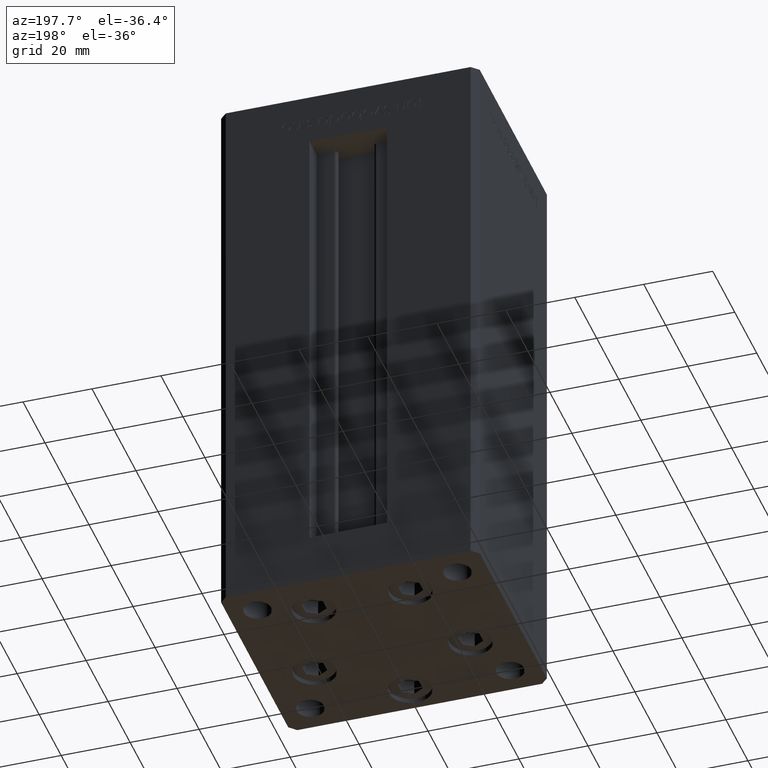
[diagram: clean part render]
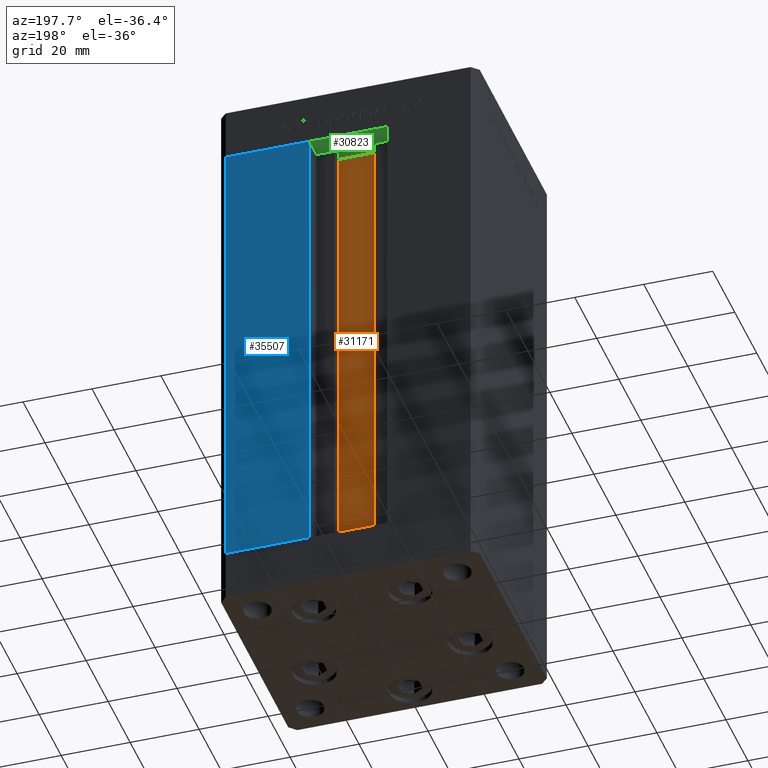
[diagram: same view with three faces highlighted in distinct colors, each labeled with its STEP entity id]
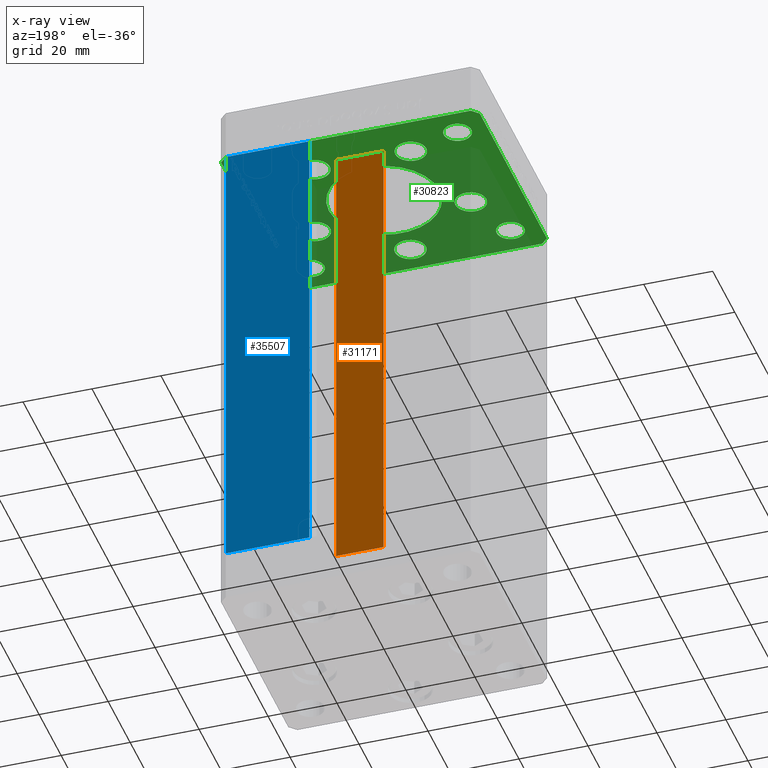
[diagram: x-ray of the same camera — body ghosted, the three highlighted faces saturated]
A machine part, auxiliary view with three faces highlighted in distinct colors.
The next image is the same camera in x-ray (body ghosted, the three faces saturated) — at least one of them is partly hidden behind the body in this view.
Their STEP definitions:

[orange] entity #31171 — the highlighted planar face has unit normal (0, -1, 0).
#5036 = FACE_OUTER_BOUND ( 'NONE', #39248, .T. ) ;
#7399 = VERTEX_POINT ( 'NONE', #44508 ) ;
#10540 = VECTOR ( 'NONE', #51314, 1000.000000000000000 ) ;
#10552 = LINE ( 'NONE', #26660, #30003 ) ;
#11081 = VERTEX_POINT ( 'NONE', #27765 ) ;
#11574 = EDGE_CURVE ( 'NONE', #38938, #7399, #39173, .T. ) ;
#12938 = CARTESIAN_POINT ( 'NONE',  ( 6.876153656360466826, 21.99999999999986855, 0.000000000000000000 ) ) ;
#13331 = VECTOR ( 'NONE', #29204, 1000.000000000000000 ) ;
#13368 = ORIENTED_EDGE ( 'NONE', *, *, #25436, .F. ) ;
#17981 = LINE ( 'NONE', #26424, #46942 ) ;
#23220 = DIRECTION ( 'NONE',  ( -1.000000000000000000, 0.000000000000000000, 0.000000000000000000 ) ) ;
#24322 = DIRECTION ( 'NONE',  ( 0.000000000000000000, -1.000000000000000000, -0.000000000000000000 ) ) ;
#25436 = EDGE_CURVE ( 'NONE', #11081, #7399, #10552, .T. ) ;
#26424 = CARTESIAN_POINT ( 'NONE',  ( 6.876153656360466826, 21.99999999999986855, 0.000000000000000000 ) ) ;
#26660 = CARTESIAN_POINT ( 'NONE',  ( 0.000000000000000000, 21.99999999999986855, 136.0000000000000000 ) ) ;
#26761 = CARTESIAN_POINT ( 'NONE',  ( 6.876153656360466826, 21.99999999999986855, 0.000000000000000000 ) ) ;
#27765 = CARTESIAN_POINT ( 'NONE',  ( 6.876153656360466826, 21.99999999999986855, 136.0000000000000000 ) ) ;
#28320 = VERTEX_POINT ( 'NONE', #26761 ) ;
#29204 = DIRECTION ( 'NONE',  ( -0.000000000000000000, -0.000000000000000000, 1.000000000000000000 ) ) ;
#29875 = DIRECTION ( 'NONE',  ( 1.000000000000000000, -0.000000000000000000, -0.000000000000000000 ) ) ;
#30003 = VECTOR ( 'NONE', #23220, 1000.000000000000000 ) ;
#30149 = ORIENTED_EDGE ( 'NONE', *, *, #36680, .F. ) ;
#30495 = CARTESIAN_POINT ( 'NONE',  ( -6.876153656360466826, 21.99999999999986855, 0.000000000000000000 ) ) ;
#31171 = ADVANCED_FACE ( 'NONE', ( #5036 ), #40911, .F. ) ;
#31974 = DIRECTION ( 'NONE',  ( 0.000000000000000000, 0.000000000000000000, -1.000000000000000000 ) ) ;
#33410 = LINE ( 'NONE', #33674, #13331 ) ;
#33674 = CARTESIAN_POINT ( 'NONE',  ( 6.876153656360466826, 21.99999999999986855, 0.000000000000000000 ) ) ;
#33834 = EDGE_CURVE ( 'NONE', #28320, #11081, #33410, .T. ) ;
#36680 = EDGE_CURVE ( 'NONE', #38938, #28320, #17981, .T. ) ;
#38938 = VERTEX_POINT ( 'NONE', #47896 ) ;
#39173 = LINE ( 'NONE', #30495, #10540 ) ;
#39248 = EDGE_LOOP ( 'NONE', ( #49405, #30149, #39843, #13368 ) ) ;
#39843 = ORIENTED_EDGE ( 'NONE', *, *, #11574, .T. ) ;
#40911 = PLANE ( 'NONE',  #42725 ) ;
#42725 = AXIS2_PLACEMENT_3D ( 'NONE', #12938, #24322, #31974 ) ;
#44508 = CARTESIAN_POINT ( 'NONE',  ( -6.876153656360466826, 21.99999999999986855, 136.0000000000000000 ) ) ;
#46942 = VECTOR ( 'NONE', #29875, 1000.000000000000000 ) ;
#47896 = CARTESIAN_POINT ( 'NONE',  ( -6.876153656360466826, 21.99999999999986855, 0.000000000000000000 ) ) ;
#49405 = ORIENTED_EDGE ( 'NONE', *, *, #33834, .F. ) ;
#51314 = DIRECTION ( 'NONE',  ( -0.000000000000000000, -0.000000000000000000, 1.000000000000000000 ) ) ;

[blue] entity #35507 — the highlighted planar face has unit normal (0, -1, 0).
#254 = EDGE_CURVE ( 'NONE', #8509, #34394, #17648, .T. ) ;
#278 = VECTOR ( 'NONE', #45338, 1000.000000000000000 ) ;
#1645 = VERTEX_POINT ( 'NONE', #47778 ) ;
#2880 = EDGE_CURVE ( 'NONE', #34394, #18643, #46605, .T. ) ;
#5257 = CARTESIAN_POINT ( 'NONE',  ( -11.25000000000000178, 32.49999999999999289, 0.000000000000000000 ) ) ;
#6258 = DIRECTION ( 'NONE',  ( -0.000000000000000000, -0.000000000000000000, 1.000000000000000000 ) ) ;
#8509 = VERTEX_POINT ( 'NONE', #45609 ) ;
#9474 = EDGE_CURVE ( 'NONE', #1645, #8509, #23139, .T. ) ;
#13561 = ORIENTED_EDGE ( 'NONE', *, *, #20313, .T. ) ;
#14161 = ORIENTED_EDGE ( 'NONE', *, *, #9474, .T. ) ;
#15222 = DIRECTION ( 'NONE',  ( 1.000000000000000000, 0.000000000000000000, 0.000000000000000000 ) ) ;
#17648 = LINE ( 'NONE', #5257, #278 ) ;
#17971 = CARTESIAN_POINT ( 'NONE',  ( 11.25000000000000178, 32.49999999999999289, 0.000000000000000000 ) ) ;
#18643 = VERTEX_POINT ( 'NONE', #40795 ) ;
#20313 = EDGE_CURVE ( 'NONE', #18643, #1645, #43174, .T. ) ;
#21452 = VECTOR ( 'NONE', #42380, 1000.000000000000000 ) ;
#21707 = AXIS2_PLACEMENT_3D ( 'NONE', #34007, #37458, #41919 ) ;
#22262 = VECTOR ( 'NONE', #15222, 1000.000000000000000 ) ;
#23139 = LINE ( 'NONE', #39220, #21452 ) ;
#25638 = VECTOR ( 'NONE', #6258, 1000.000000000000000 ) ;
#26836 = ORIENTED_EDGE ( 'NONE', *, *, #2880, .T. ) ;
#29692 = ORIENTED_EDGE ( 'NONE', *, *, #254, .T. ) ;
#32971 = FACE_OUTER_BOUND ( 'NONE', #48219, .T. ) ;
#33498 = PLANE ( 'NONE',  #21707 ) ;
#34007 = CARTESIAN_POINT ( 'NONE',  ( -11.25000000000000178, 32.49999999999999289, 136.0000000000000000 ) ) ;
#34394 = VERTEX_POINT ( 'NONE', #17971 ) ;
#35507 = ADVANCED_FACE ( 'NONE', ( #32971 ), #33498, .F. ) ;
#37458 = DIRECTION ( 'NONE',  ( 0.000000000000000000, -1.000000000000000000, 0.000000000000000000 ) ) ;
#39220 = CARTESIAN_POINT ( 'NONE',  ( 35.50000000000000000, 32.49999999999999289, 136.0000000000000000 ) ) ;
#40795 = CARTESIAN_POINT ( 'NONE',  ( 11.24999999999999467, 32.49999999999999289, 136.0000000000000000 ) ) ;
#41919 = DIRECTION ( 'NONE',  ( 0.000000000000000000, -0.000000000000000000, -1.000000000000000000 ) ) ;
#42380 = DIRECTION ( 'NONE',  ( -0.000000000000000000, -0.000000000000000000, -1.000000000000000000 ) ) ;
#42381 = CARTESIAN_POINT ( 'NONE',  ( 11.25000000000000178, 32.49999999999999289, 0.000000000000000000 ) ) ;
#43174 = LINE ( 'NONE', #51372, #22262 ) ;
#45338 = DIRECTION ( 'NONE',  ( -1.000000000000000000, 0.000000000000000000, 0.000000000000000000 ) ) ;
#45609 = CARTESIAN_POINT ( 'NONE',  ( 35.50000000000000000, 32.49999999999999289, 0.000000000000000000 ) ) ;
#46605 = LINE ( 'NONE', #42381, #25638 ) ;
#47778 = CARTESIAN_POINT ( 'NONE',  ( 35.50000000000000000, 32.49999999999999289, 136.0000000000000000 ) ) ;
#48219 = EDGE_LOOP ( 'NONE', ( #29692, #26836, #13561, #14161 ) ) ;
#51372 = CARTESIAN_POINT ( 'NONE',  ( -11.25000000000000178, 32.49999999999999289, 136.0000000000000000 ) ) ;

[green] entity #30823 — the highlighted planar face has unit normal (0, 0, 1).
#59 = ORIENTED_EDGE ( 'NONE', *, *, #23128, .F. ) ;
#770 = EDGE_CURVE ( 'NONE', #25433, #51928, #17193, .T. ) ;
#1170 = CARTESIAN_POINT ( 'NONE',  ( 37.50000000000000711, -30.49999999999992895, -15.00000000000000000 ) ) ;
#1543 = CIRCLE ( 'NONE', #32691, 4.000000000000000000 ) ;
#1747 = EDGE_LOOP ( 'NONE', ( #25904, #6349 ) ) ;
#2016 = CARTESIAN_POINT ( 'NONE',  ( 29.00000000000000355, -23.99999999999999645, -15.00000000000000000 ) ) ;
#2262 = EDGE_CURVE ( 'NONE', #7121, #46068, #24762, .T. ) ;
#2385 = CARTESIAN_POINT ( 'NONE',  ( 18.49106857963324657, 19.50000000000000000, -15.00000000000000000 ) ) ;
#2556 = CARTESIAN_POINT ( 'NONE',  ( -33.00000000000000000, 24.00000000000000711, -15.00000000000000000 ) ) ;
#2763 = FACE_BOUND ( 'NONE', #10612, .T. ) ;
#3019 = AXIS2_PLACEMENT_3D ( 'NONE', #9037, #42002, #12992 ) ;
#3143 = ORIENTED_EDGE ( 'NONE', *, *, #17221, .T. ) ;
#3460 = CARTESIAN_POINT ( 'NONE',  ( -37.50000000000000000, -30.50000000000004263, -15.00000000000000000 ) ) ;
#3527 = CIRCLE ( 'NONE', #17004, 4.500000000000001776 ) ;
#3692 = AXIS2_PLACEMENT_3D ( 'NONE', #19441, #11246, #39224 ) ;
#3711 = ORIENTED_EDGE ( 'NONE', *, *, #2262, .F. ) ;
#3776 = VECTOR ( 'NONE', #9331, 1000.000000000000000 ) ;
#3792 = FACE_BOUND ( 'NONE', #18503, .T. ) ;
#4154 = VERTEX_POINT ( 'NONE', #13991 ) ;
#4264 = EDGE_LOOP ( 'NONE', ( #11754, #44712, #24558, #37135, #18704, #38947, #59, #25719 ) ) ;
#4431 = CIRCLE ( 'NONE', #49055, 4.500000000000000888 ) ;
#4585 = CARTESIAN_POINT ( 'NONE',  ( 16.00000000000000000, 0.000000000000000000, -15.00000000000000000 ) ) ;
#4653 = CARTESIAN_POINT ( 'NONE',  ( -29.00000000000000000, -23.99999999999999645, -15.00000000000000000 ) ) ;
#4684 = CARTESIAN_POINT ( 'NONE',  ( -32.99999999999999289, -23.99999999999999645, -15.00000000000000000 ) ) ;
#4767 = DIRECTION ( 'NONE',  ( 0.000000000000000000, 0.000000000000000000, 1.000000000000000000 ) ) ;
#5081 = CIRCLE ( 'NONE', #34557, 4.500000000000000888 ) ;
#5229 = DIRECTION ( 'NONE',  ( 0.000000000000000000, 0.000000000000000000, 1.000000000000000000 ) ) ;
#5392 = DIRECTION ( 'NONE',  ( 0.000000000000000000, -0.000000000000000000, -1.000000000000000000 ) ) ;
#5548 = EDGE_CURVE ( 'NONE', #47683, #9333, #25184, .T. ) ;
#6126 = EDGE_CURVE ( 'NONE', #6301, #41268, #50967, .T. ) ;
#6182 = VECTOR ( 'NONE', #17976, 1000.000000000000000 ) ;
#6229 = DIRECTION ( 'NONE',  ( 0.000000000000000000, -0.000000000000000000, -1.000000000000000000 ) ) ;
#6246 = CARTESIAN_POINT ( 'NONE',  ( 35.50000000000000000, 32.49999999999999289, -15.00000000000000000 ) ) ;
#6301 = VERTEX_POINT ( 'NONE', #45477 ) ;
#6349 = ORIENTED_EDGE ( 'NONE', *, *, #11262, .T. ) ;
#6663 = ORIENTED_EDGE ( 'NONE', *, *, #50990, .F. ) ;
#6718 = FACE_BOUND ( 'NONE', #15046, .T. ) ;
#7076 = VECTOR ( 'NONE', #48176, 1000.000000000000000 ) ;
#7112 = ORIENTED_EDGE ( 'NONE', *, *, #28266, .F. ) ;
#7121 = VERTEX_POINT ( 'NONE', #35165 ) ;
#7335 = EDGE_CURVE ( 'NONE', #29154, #45421, #12128, .T. ) ;
#7400 = EDGE_LOOP ( 'NONE', ( #44560, #16612 ) ) ;
#7820 = EDGE_CURVE ( 'NONE', #9333, #41413, #9077, .T. ) ;
#7895 = CARTESIAN_POINT ( 'NONE',  ( -4.500000000000001776, -24.00000000000001066, -15.00000000000000000 ) ) ;
#7982 = VECTOR ( 'NONE', #22710, 1000.000000000000000 ) ;
#8054 = CARTESIAN_POINT ( 'NONE',  ( 0.000000000000000000, -24.00000000000001066, -15.00000000000000000 ) ) ;
#9037 = CARTESIAN_POINT ( 'NONE',  ( -22.62741699796953299, -8.000000000000000000, -15.00000000000000000 ) ) ;
#9077 = LINE ( 'NONE', #9857, #51712 ) ;
#9331 = DIRECTION ( 'NONE',  ( -0.7071067811865524577, -0.7071067811865426878, 0.000000000000000000 ) ) ;
#9333 = VERTEX_POINT ( 'NONE', #24564 ) ;
#9500 = EDGE_LOOP ( 'NONE', ( #17604, #12525 ) ) ;
#9594 = CIRCLE ( 'NONE', #39089, 4.000000000000000000 ) ;
#9857 = CARTESIAN_POINT ( 'NONE',  ( -37.50000000000001421, 30.50000000000000000, -15.00000000000000000 ) ) ;
#10176 = DIRECTION ( 'NONE',  ( 0.000000000000000000, -0.000000000000000000, -1.000000000000000000 ) ) ;
#10443 = DIRECTION ( 'NONE',  ( 1.000000000000000000, 0.000000000000000000, 0.000000000000000000 ) ) ;
#10612 = EDGE_LOOP ( 'NONE', ( #11625, #36921 ) ) ;
#11246 = DIRECTION ( 'NONE',  ( -0.000000000000000000, -0.000000000000000000, -1.000000000000000000 ) ) ;
#11262 = EDGE_CURVE ( 'NONE', #37013, #13730, #40902, .T. ) ;
#11449 = DIRECTION ( 'NONE',  ( 0.000000000000000000, -0.000000000000000000, -1.000000000000000000 ) ) ;
#11625 = ORIENTED_EDGE ( 'NONE', *, *, #7335, .F. ) ;
#11666 = AXIS2_PLACEMENT_3D ( 'NONE', #2016, #21556, #18368 ) ;
#11705 = FACE_BOUND ( 'NONE', #49086, .T. ) ;
#11745 = ORIENTED_EDGE ( 'NONE', *, *, #32929, .F. ) ;
#11754 = ORIENTED_EDGE ( 'NONE', *, *, #20594, .F. ) ;
#11969 = FACE_BOUND ( 'NONE', #9500, .T. ) ;
#12128 = CIRCLE ( 'NONE', #14658, 16.00000000000000000 ) ;
#12166 = DIRECTION ( 'NONE',  ( 1.000000000000000000, 0.000000000000000000, 0.000000000000000000 ) ) ;
#12415 = DIRECTION ( 'NONE',  ( 1.000000000000000000, 0.000000000000000000, 0.000000000000000000 ) ) ;
#12525 = ORIENTED_EDGE ( 'NONE', *, *, #34568, .F. ) ;
#12594 = CARTESIAN_POINT ( 'NONE',  ( 9.491068579633235913, 19.50000000000000000, -15.00000000000000000 ) ) ;
#12744 = EDGE_CURVE ( 'NONE', #4154, #31266, #14814, .T. ) ;
#12992 = DIRECTION ( 'NONE',  ( 1.000000000000000000, 0.000000000000000000, 0.000000000000000000 ) ) ;
#13724 = CARTESIAN_POINT ( 'NONE',  ( 29.00000000000000000, 24.00000000000000355, -15.00000000000000000 ) ) ;
#13729 = CARTESIAN_POINT ( 'NONE',  ( -27.12741699796953299, -8.000000000000000000, -15.00000000000000000 ) ) ;
#13730 = VERTEX_POINT ( 'NONE', #24829 ) ;
#13823 = DIRECTION ( 'NONE',  ( 2.275047181608926165E-16, -1.000000000000000000, 0.000000000000000000 ) ) ;
#13880 = LINE ( 'NONE', #46046, #16684 ) ;
#13991 = CARTESIAN_POINT ( 'NONE',  ( -18.12741699796953654, -8.000000000000000000, -15.00000000000000000 ) ) ;
#14119 = CIRCLE ( 'NONE', #36043, 16.00000000000000000 ) ;
#14345 = ORIENTED_EDGE ( 'NONE', *, *, #20933, .F. ) ;
#14348 = VERTEX_POINT ( 'NONE', #18012 ) ;
#14349 = DIRECTION ( 'NONE',  ( 1.000000000000000000, 0.000000000000000000, 0.000000000000000000 ) ) ;
#14658 = AXIS2_PLACEMENT_3D ( 'NONE', #51650, #23171, #39252 ) ;
#14671 = CARTESIAN_POINT ( 'NONE',  ( -13.99106857963324124, 19.50000000000000000, -15.00000000000000000 ) ) ;
#14788 = CARTESIAN_POINT ( 'NONE',  ( 35.50000000000001421, -32.49999999999992184, -15.00000000000000000 ) ) ;
#14814 = CIRCLE ( 'NONE', #3019, 4.499999999999997335 ) ;
#15046 = EDGE_LOOP ( 'NONE', ( #37133, #7112 ) ) ;
#15515 = AXIS2_PLACEMENT_3D ( 'NONE', #35919, #5229, #12166 ) ;
#15751 = CARTESIAN_POINT ( 'NONE',  ( -16.00000000000000000, 1.959434878635765131E-15, -15.00000000000000000 ) ) ;
#15752 = DIRECTION ( 'NONE',  ( 1.000000000000000000, 0.000000000000000000, 0.000000000000000000 ) ) ;
#15856 = ORIENTED_EDGE ( 'NONE', *, *, #16330, .F. ) ;
#15937 = FACE_BOUND ( 'NONE', #46426, .T. ) ;
#16330 = EDGE_CURVE ( 'NONE', #37010, #25855, #36801, .T. ) ;
#16488 = VERTEX_POINT ( 'NONE', #2556 ) ;
#16564 = CARTESIAN_POINT ( 'NONE',  ( 22.62741699796953299, -8.000000000000000000, -15.00000000000000000 ) ) ;
#16612 = ORIENTED_EDGE ( 'NONE', *, *, #49806, .F. ) ;
#16684 = VECTOR ( 'NONE', #37370, 1000.000000000000000 ) ;
#17004 = AXIS2_PLACEMENT_3D ( 'NONE', #8054, #24424, #36802 ) ;
#17193 = LINE ( 'NONE', #38288, #6182 ) ;
#17221 = EDGE_CURVE ( 'NONE', #50932, #43265, #43549, .T. ) ;
#17604 = ORIENTED_EDGE ( 'NONE', *, *, #21389, .F. ) ;
#17608 = DIRECTION ( 'NONE',  ( 0.000000000000000000, -0.000000000000000000, -1.000000000000000000 ) ) ;
#17851 = CARTESIAN_POINT ( 'NONE',  ( -13.99106857963324124, 19.50000000000000000, -15.00000000000000000 ) ) ;
#17976 = DIRECTION ( 'NONE',  ( -0.7071067811865524577, 0.7071067811865426878, 0.000000000000000000 ) ) ;
#18008 = CARTESIAN_POINT ( 'NONE',  ( -29.00000000000000000, 24.00000000000000711, -15.00000000000000000 ) ) ;
#18012 = CARTESIAN_POINT ( 'NONE',  ( 25.00000000000000355, -23.99999999999999645, -15.00000000000000000 ) ) ;
#18368 = DIRECTION ( 'NONE',  ( -1.000000000000000000, 0.000000000000000000, 0.000000000000000000 ) ) ;
#18503 = EDGE_LOOP ( 'NONE', ( #18611, #15856 ) ) ;
#18611 = ORIENTED_EDGE ( 'NONE', *, *, #20277, .F. ) ;
#18654 = DIRECTION ( 'NONE',  ( 0.000000000000000000, -0.000000000000000000, -1.000000000000000000 ) ) ;
#18670 = DIRECTION ( 'NONE',  ( 0.000000000000000000, -0.000000000000000000, -1.000000000000000000 ) ) ;
#18704 = ORIENTED_EDGE ( 'NONE', *, *, #770, .F. ) ;
#18853 = PLANE ( 'NONE',  #48616 ) ;
#19434 = CARTESIAN_POINT ( 'NONE',  ( 0.000000000000000000, -24.00000000000001066, -15.00000000000000000 ) ) ;
#19441 = CARTESIAN_POINT ( 'NONE',  ( 29.00000000000000355, -23.99999999999999645, -15.00000000000000000 ) ) ;
#19448 = DIRECTION ( 'NONE',  ( 1.000000000000000000, 0.000000000000000000, 0.000000000000000000 ) ) ;
#19638 = DIRECTION ( 'NONE',  ( 1.000000000000000000, 0.000000000000000000, 0.000000000000000000 ) ) ;
#20077 = VERTEX_POINT ( 'NONE', #37782 ) ;
#20194 = VERTEX_POINT ( 'NONE', #47759 ) ;
#20277 = EDGE_CURVE ( 'NONE', #25855, #37010, #22700, .T. ) ;
#20559 = CARTESIAN_POINT ( 'NONE',  ( 35.50000000000000000, 32.49999999999999289, -15.00000000000000000 ) ) ;
#20594 = EDGE_CURVE ( 'NONE', #41413, #44416, #51880, .T. ) ;
#20687 = AXIS2_PLACEMENT_3D ( 'NONE', #4653, #32628, #15752 ) ;
#20836 = AXIS2_PLACEMENT_3D ( 'NONE', #13724, #4767, #45372 ) ;
#20933 = EDGE_CURVE ( 'NONE', #16488, #20077, #9594, .T. ) ;
#20954 = DIRECTION ( 'NONE',  ( -0.000000000000000000, -0.000000000000000000, -1.000000000000000000 ) ) ;
#21155 = EDGE_CURVE ( 'NONE', #43265, #50932, #47515, .T. ) ;
#21389 = EDGE_CURVE ( 'NONE', #38927, #14348, #21406, .T. ) ;
#21406 = CIRCLE ( 'NONE', #3692, 4.000000000000000000 ) ;
#21556 = DIRECTION ( 'NONE',  ( -0.000000000000000000, -0.000000000000000000, -1.000000000000000000 ) ) ;
#21742 = CARTESIAN_POINT ( 'NONE',  ( -29.00000000000000000, 24.00000000000000711, -15.00000000000000000 ) ) ;
#22065 = CIRCLE ( 'NONE', #51544, 4.499999999999999112 ) ;
#22700 = CIRCLE ( 'NONE', #32361, 4.500000000000005329 ) ;
#22710 = DIRECTION ( 'NONE',  ( 0.7071067811865463515, 0.7071067811865487940, 0.000000000000000000 ) ) ;
#23074 = FACE_OUTER_BOUND ( 'NONE', #4264, .T. ) ;
#23128 = EDGE_CURVE ( 'NONE', #26676, #32581, #43245, .T. ) ;
#23171 = DIRECTION ( 'NONE',  ( 0.000000000000000000, -0.000000000000000000, -1.000000000000000000 ) ) ;
#23189 = CARTESIAN_POINT ( 'NONE',  ( 33.00000000000000000, 24.00000000000000355, -15.00000000000000000 ) ) ;
#23397 = DIRECTION ( 'NONE',  ( 1.000000000000000000, 0.000000000000000000, 0.000000000000000000 ) ) ;
#23463 = DIRECTION ( 'NONE',  ( 0.000000000000000000, -0.000000000000000000, -1.000000000000000000 ) ) ;
#24424 = DIRECTION ( 'NONE',  ( 0.000000000000000000, -0.000000000000000000, -1.000000000000000000 ) ) ;
#24558 = ORIENTED_EDGE ( 'NONE', *, *, #5548, .F. ) ;
#24564 = CARTESIAN_POINT ( 'NONE',  ( -37.50000000000001421, 30.50000000000000000, -15.00000000000000000 ) ) ;
#24762 = CIRCLE ( 'NONE', #51717, 4.500000000000001776 ) ;
#24782 = LINE ( 'NONE', #20559, #26835 ) ;
#24829 = CARTESIAN_POINT ( 'NONE',  ( -25.00000000000000355, -23.99999999999999645, -15.00000000000000000 ) ) ;
#24974 = CARTESIAN_POINT ( 'NONE',  ( 37.50000000000000711, -30.49999999999992895, -15.00000000000000000 ) ) ;
#25184 = LINE ( 'NONE', #37308, #3776 ) ;
#25270 = ORIENTED_EDGE ( 'NONE', *, *, #44138, .F. ) ;
#25433 = VERTEX_POINT ( 'NONE', #26923 ) ;
#25719 = ORIENTED_EDGE ( 'NONE', *, *, #33905, .F. ) ;
#25855 = VERTEX_POINT ( 'NONE', #2385 ) ;
#25904 = ORIENTED_EDGE ( 'NONE', *, *, #49080, .T. ) ;
#26676 = VERTEX_POINT ( 'NONE', #42475 ) ;
#26835 = VECTOR ( 'NONE', #32436, 1000.000000000000000 ) ;
#26923 = CARTESIAN_POINT ( 'NONE',  ( 37.50000000000000711, 30.50000000000001421, -15.00000000000000000 ) ) ;
#27883 = CARTESIAN_POINT ( 'NONE',  ( -37.50000000000000000, -30.50000000000004263, -15.00000000000000000 ) ) ;
#28088 = CARTESIAN_POINT ( 'NONE',  ( 24.99999999999999645, 24.00000000000000355, -15.00000000000000000 ) ) ;
#28255 = EDGE_CURVE ( 'NONE', #32581, #25433, #37320, .T. ) ;
#28266 = EDGE_CURVE ( 'NONE', #31266, #4154, #51936, .T. ) ;
#28322 = DIRECTION ( 'NONE',  ( 1.000000000000000000, 0.000000000000000000, 0.000000000000000000 ) ) ;
#28532 = CIRCLE ( 'NONE', #11666, 4.000000000000000000 ) ;
#28859 = DIRECTION ( 'NONE',  ( -1.000000000000000000, 0.000000000000000000, 0.000000000000000000 ) ) ;
#29154 = VERTEX_POINT ( 'NONE', #4585 ) ;
#29235 = DIRECTION ( 'NONE',  ( 1.000000000000000000, 0.000000000000000000, 0.000000000000000000 ) ) ;
#29372 = DIRECTION ( 'NONE',  ( 0.000000000000000000, 0.000000000000000000, 1.000000000000000000 ) ) ;
#30327 = ORIENTED_EDGE ( 'NONE', *, *, #49992, .F. ) ;
#30823 = ADVANCED_FACE ( 'NONE', ( #2763, #6718, #11705, #39934, #3792, #35980, #15937, #48109, #23074, #34946, #11969 ), #18853, .F. ) ;
#31005 = DIRECTION ( 'NONE',  ( -0.000000000000000000, 0.000000000000000000, 1.000000000000000000 ) ) ;
#31261 = CARTESIAN_POINT ( 'NONE',  ( -35.50000000000001421, -32.50000000000000711, -15.00000000000000000 ) ) ;
#31266 = VERTEX_POINT ( 'NONE', #13729 ) ;
#32123 = EDGE_CURVE ( 'NONE', #45421, #29154, #14119, .T. ) ;
#32215 = CARTESIAN_POINT ( 'NONE',  ( 13.99106857963324124, 19.50000000000000000, -15.00000000000000000 ) ) ;
#32361 = AXIS2_PLACEMENT_3D ( 'NONE', #50586, #18670, #19448 ) ;
#32436 = DIRECTION ( 'NONE',  ( -1.000000000000000000, -1.954618001100627573E-16, 0.000000000000000000 ) ) ;
#32581 = VERTEX_POINT ( 'NONE', #24974 ) ;
#32628 = DIRECTION ( 'NONE',  ( 0.000000000000000000, 0.000000000000000000, 1.000000000000000000 ) ) ;
#32640 = CARTESIAN_POINT ( 'NONE',  ( -35.50000000000000711, 32.49999999999997868, -15.00000000000000000 ) ) ;
#32691 = AXIS2_PLACEMENT_3D ( 'NONE', #21742, #20954, #48904 ) ;
#32929 = EDGE_CURVE ( 'NONE', #20077, #16488, #1543, .T. ) ;
#33016 = CIRCLE ( 'NONE', #39755, 3.999999999999996447 ) ;
#33526 = EDGE_CURVE ( 'NONE', #51928, #47683, #24782, .T. ) ;
#33905 = EDGE_CURVE ( 'NONE', #44416, #26676, #13880, .T. ) ;
#34557 = AXIS2_PLACEMENT_3D ( 'NONE', #44982, #23463, #35327 ) ;
#34568 = EDGE_CURVE ( 'NONE', #14348, #38927, #28532, .T. ) ;
#34946 = FACE_BOUND ( 'NONE', #37722, .T. ) ;
#35165 = CARTESIAN_POINT ( 'NONE',  ( 4.500000000000001776, -24.00000000000001066, -15.00000000000000000 ) ) ;
#35327 = DIRECTION ( 'NONE',  ( 1.000000000000000000, 0.000000000000000000, 0.000000000000000000 ) ) ;
#35919 = CARTESIAN_POINT ( 'NONE',  ( 29.00000000000000000, 24.00000000000000355, -15.00000000000000000 ) ) ;
#35980 = FACE_BOUND ( 'NONE', #7400, .T. ) ;
#36043 = AXIS2_PLACEMENT_3D ( 'NONE', #47593, #11449, #19638 ) ;
#36678 = CARTESIAN_POINT ( 'NONE',  ( 18.12741699796953299, -8.000000000000000000, -15.00000000000000000 ) ) ;
#36801 = CIRCLE ( 'NONE', #41832, 4.500000000000005329 ) ;
#36802 = DIRECTION ( 'NONE',  ( 1.000000000000000000, 0.000000000000000000, 0.000000000000000000 ) ) ;
#36921 = ORIENTED_EDGE ( 'NONE', *, *, #32123, .F. ) ;
#37010 = VERTEX_POINT ( 'NONE', #12594 ) ;
#37013 = VERTEX_POINT ( 'NONE', #4684 ) ;
#37133 = ORIENTED_EDGE ( 'NONE', *, *, #12744, .F. ) ;
#37135 = ORIENTED_EDGE ( 'NONE', *, *, #33526, .F. ) ;
#37264 = CARTESIAN_POINT ( 'NONE',  ( -29.00000000000000000, -23.99999999999999645, -15.00000000000000000 ) ) ;
#37308 = CARTESIAN_POINT ( 'NONE',  ( -35.50000000000000711, 32.49999999999997868, -15.00000000000000000 ) ) ;
#37320 = LINE ( 'NONE', #1170, #45171 ) ;
#37370 = DIRECTION ( 'NONE',  ( 1.000000000000000000, 1.172770800660376149E-15, 0.000000000000000000 ) ) ;
#37607 = VERTEX_POINT ( 'NONE', #36678 ) ;
#37722 = EDGE_LOOP ( 'NONE', ( #11745, #14345 ) ) ;
#37782 = CARTESIAN_POINT ( 'NONE',  ( -25.00000000000000000, 24.00000000000000711, -15.00000000000000000 ) ) ;
#38288 = CARTESIAN_POINT ( 'NONE',  ( 37.50000000000000711, 30.50000000000001421, -15.00000000000000000 ) ) ;
#38927 = VERTEX_POINT ( 'NONE', #39718 ) ;
#38947 = ORIENTED_EDGE ( 'NONE', *, *, #28255, .F. ) ;
#39089 = AXIS2_PLACEMENT_3D ( 'NONE', #18008, #50189, #28859 ) ;
#39224 = DIRECTION ( 'NONE',  ( -1.000000000000000000, 0.000000000000000000, 0.000000000000000000 ) ) ;
#39252 = DIRECTION ( 'NONE',  ( 1.000000000000000000, 0.000000000000000000, 0.000000000000000000 ) ) ;
#39718 = CARTESIAN_POINT ( 'NONE',  ( 33.00000000000000000, -23.99999999999999645, -15.00000000000000000 ) ) ;
#39755 = AXIS2_PLACEMENT_3D ( 'NONE', #37264, #29372, #28322 ) ;
#39873 = EDGE_LOOP ( 'NONE', ( #25270, #6663 ) ) ;
#39934 = FACE_BOUND ( 'NONE', #39873, .T. ) ;
#40866 = AXIS2_PLACEMENT_3D ( 'NONE', #14671, #6229, #10443 ) ;
#40902 = CIRCLE ( 'NONE', #20687, 3.999999999999996447 ) ;
#41268 = VERTEX_POINT ( 'NONE', #43026 ) ;
#41413 = VERTEX_POINT ( 'NONE', #3460 ) ;
#41528 = CARTESIAN_POINT ( 'NONE',  ( -22.62741699796953299, -8.000000000000000000, -15.00000000000000000 ) ) ;
#41832 = AXIS2_PLACEMENT_3D ( 'NONE', #32215, #47505, #12415 ) ;
#42002 = DIRECTION ( 'NONE',  ( 0.000000000000000000, -0.000000000000000000, -1.000000000000000000 ) ) ;
#42475 = CARTESIAN_POINT ( 'NONE',  ( 35.50000000000001421, -32.49999999999992184, -15.00000000000000000 ) ) ;
#42650 = AXIS2_PLACEMENT_3D ( 'NONE', #41528, #5392, #14349 ) ;
#43026 = CARTESIAN_POINT ( 'NONE',  ( -18.49106857963323947, 19.50000000000000000, -15.00000000000000000 ) ) ;
#43245 = LINE ( 'NONE', #14788, #7982 ) ;
#43265 = VERTEX_POINT ( 'NONE', #28088 ) ;
#43549 = CIRCLE ( 'NONE', #20836, 4.000000000000000000 ) ;
#44138 = EDGE_CURVE ( 'NONE', #20194, #37607, #5081, .T. ) ;
#44416 = VERTEX_POINT ( 'NONE', #31261 ) ;
#44560 = ORIENTED_EDGE ( 'NONE', *, *, #6126, .F. ) ;
#44712 = ORIENTED_EDGE ( 'NONE', *, *, #7820, .F. ) ;
#44982 = CARTESIAN_POINT ( 'NONE',  ( 22.62741699796953299, -8.000000000000000000, -15.00000000000000000 ) ) ;
#45171 = VECTOR ( 'NONE', #49456, 1000.000000000000000 ) ;
#45279 = DIRECTION ( 'NONE',  ( 1.000000000000000000, 0.000000000000000000, 0.000000000000000000 ) ) ;
#45372 = DIRECTION ( 'NONE',  ( 1.000000000000000000, 0.000000000000000000, 0.000000000000000000 ) ) ;
#45421 = VERTEX_POINT ( 'NONE', #15751 ) ;
#45477 = CARTESIAN_POINT ( 'NONE',  ( -9.491068579633243019, 19.50000000000000000, -15.00000000000000000 ) ) ;
#46046 = CARTESIAN_POINT ( 'NONE',  ( -35.50000000000001421, -32.50000000000000711, -15.00000000000000000 ) ) ;
#46068 = VERTEX_POINT ( 'NONE', #7895 ) ;
#46426 = EDGE_LOOP ( 'NONE', ( #3143, #49567 ) ) ;
#47075 = DIRECTION ( 'NONE',  ( 1.000000000000000000, 0.000000000000000000, 0.000000000000000000 ) ) ;
#47505 = DIRECTION ( 'NONE',  ( 0.000000000000000000, -0.000000000000000000, -1.000000000000000000 ) ) ;
#47515 = CIRCLE ( 'NONE', #15515, 4.000000000000000000 ) ;
#47593 = CARTESIAN_POINT ( 'NONE',  ( 0.000000000000000000, 0.000000000000000000, -15.00000000000000000 ) ) ;
#47683 = VERTEX_POINT ( 'NONE', #32640 ) ;
#47759 = CARTESIAN_POINT ( 'NONE',  ( 27.12741699796953654, -8.000000000000000000, -15.00000000000000000 ) ) ;
#48109 = FACE_BOUND ( 'NONE', #1747, .T. ) ;
#48176 = DIRECTION ( 'NONE',  ( 0.7071067811865512365, -0.7071067811865439090, 0.000000000000000000 ) ) ;
#48616 = AXIS2_PLACEMENT_3D ( 'NONE', #51038, #31005, #47075 ) ;
#48904 = DIRECTION ( 'NONE',  ( -1.000000000000000000, 0.000000000000000000, 0.000000000000000000 ) ) ;
#49055 = AXIS2_PLACEMENT_3D ( 'NONE', #16564, #17608, #29235 ) ;
#49080 = EDGE_CURVE ( 'NONE', #13730, #37013, #33016, .T. ) ;
#49086 = EDGE_LOOP ( 'NONE', ( #3711, #30327 ) ) ;
#49456 = DIRECTION ( 'NONE',  ( 0.000000000000000000, 1.000000000000000000, 0.000000000000000000 ) ) ;
#49567 = ORIENTED_EDGE ( 'NONE', *, *, #21155, .T. ) ;
#49806 = EDGE_CURVE ( 'NONE', #41268, #6301, #22065, .T. ) ;
#49992 = EDGE_CURVE ( 'NONE', #46068, #7121, #3527, .T. ) ;
#50189 = DIRECTION ( 'NONE',  ( -0.000000000000000000, -0.000000000000000000, -1.000000000000000000 ) ) ;
#50586 = CARTESIAN_POINT ( 'NONE',  ( 13.99106857963324124, 19.50000000000000000, -15.00000000000000000 ) ) ;
#50932 = VERTEX_POINT ( 'NONE', #23189 ) ;
#50967 = CIRCLE ( 'NONE', #40866, 4.499999999999999112 ) ;
#50990 = EDGE_CURVE ( 'NONE', #37607, #20194, #4431, .T. ) ;
#51038 = CARTESIAN_POINT ( 'NONE',  ( 0.000000000000000000, 0.000000000000000000, -15.00000000000000000 ) ) ;
#51544 = AXIS2_PLACEMENT_3D ( 'NONE', #17851, #10176, #45279 ) ;
#51650 = CARTESIAN_POINT ( 'NONE',  ( 0.000000000000000000, 0.000000000000000000, -15.00000000000000000 ) ) ;
#51712 = VECTOR ( 'NONE', #13823, 1000.000000000000000 ) ;
#51717 = AXIS2_PLACEMENT_3D ( 'NONE', #19434, #18654, #23397 ) ;
#51880 = LINE ( 'NONE', #27883, #7076 ) ;
#51928 = VERTEX_POINT ( 'NONE', #6246 ) ;
#51936 = CIRCLE ( 'NONE', #42650, 4.499999999999997335 ) ;